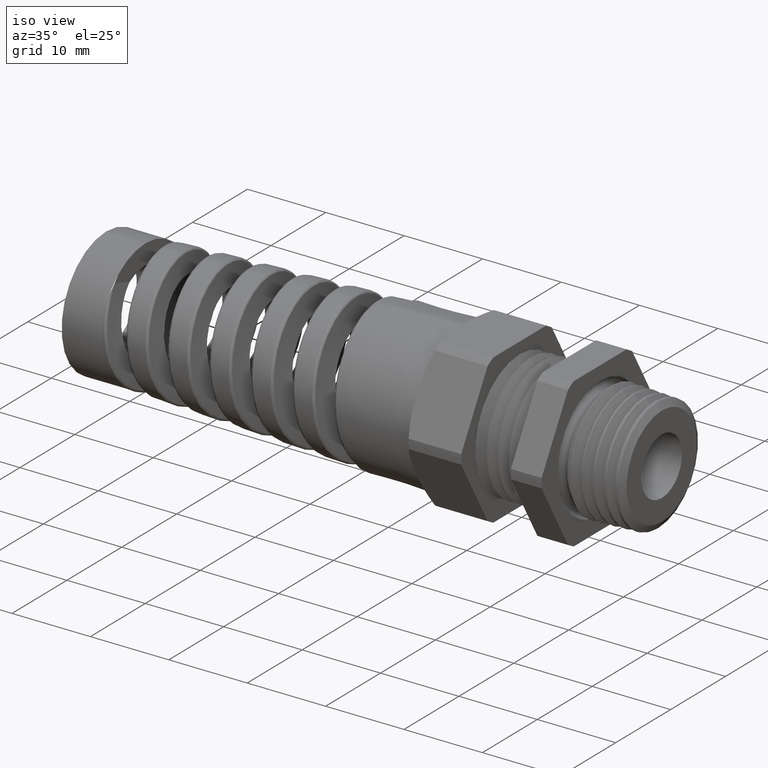
[diagram: clean part render]
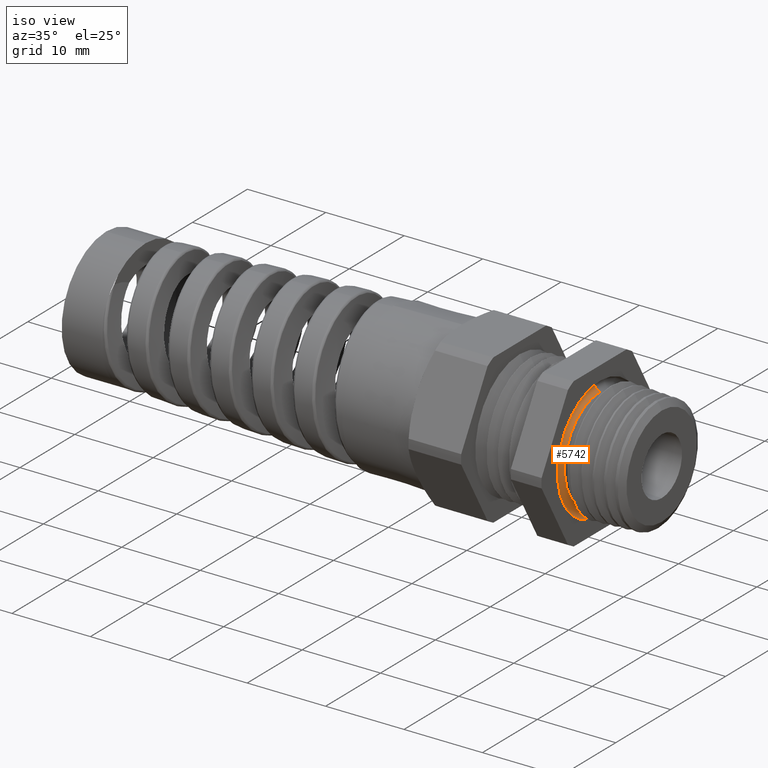
[diagram: same view with one face highlighted and labeled with its STEP entity id]
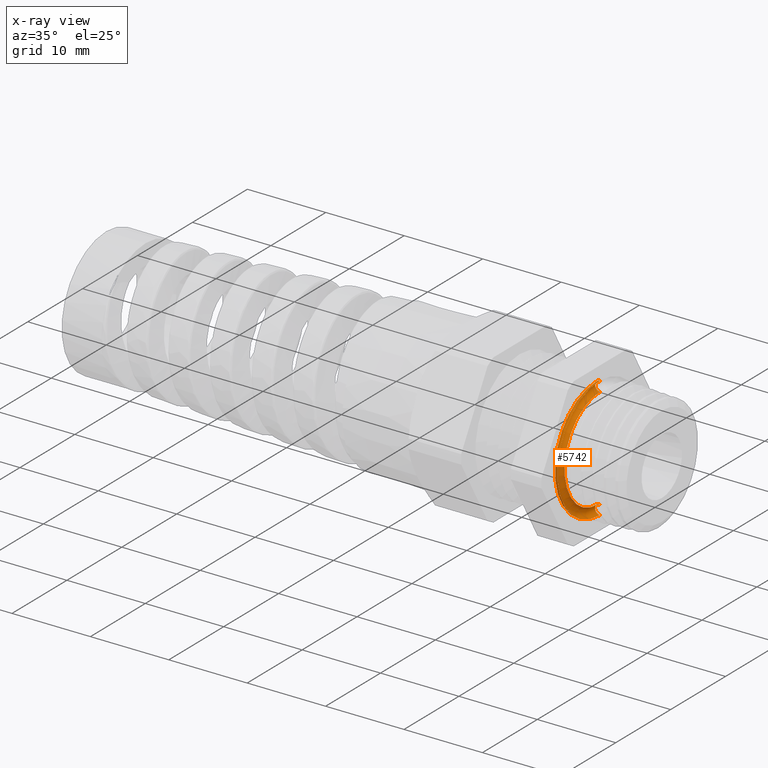
[diagram: x-ray of the same camera — body ghosted, the highlighted face saturated]
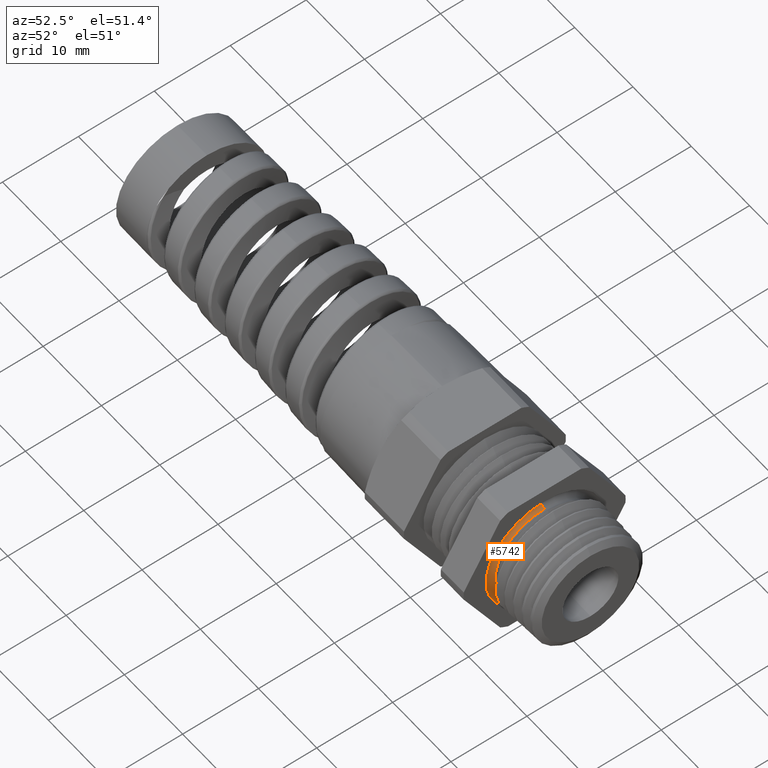
[diagram: same view with one face highlighted and labeled with its STEP entity id]
A machine part, iso view. The second image highlights one B-rep face of the part: STEP entity #5742.
The next image is the same camera in x-ray: the body ghosted, the highlighted face saturated — about 0% of this face is hidden behind the body in this view.
A second angle (auxiliary view) of the same face is appended — the face is thin or edge-on in the first view.
In plain terms, the highlighted toroidal blend (fillet) surface has major radius 7.112 mm and minor (blend) radius 0.635 mm.
Its self-contained STEP definition (entity closure, byte-faithful):
#3880 = DIRECTION ( 'NONE',  ( 0.0000000000000000000, 0.0000000000000000000, 1.000000000000000000 ) ) ;
#3881 = DIRECTION ( 'NONE',  ( 1.000000000000000000, 0.0000000000000000000, 0.0000000000000000000 ) ) ;
#3882 = CARTESIAN_POINT ( 'NONE',  ( 0.0000000000000000000, 0.0000000000000000000, 0.0000000000000000000 ) ) ;
#3883 = AXIS2_PLACEMENT_3D ( 'NONE', #3882, #3881, #3880 ) ;
#3884 = CIRCLE ( 'NONE', #3883, 0.3049999999999998300 ) ;
#3885 = DIRECTION ( 'NONE',  ( 0.0000000000000000000, 0.0000000000000000000, -1.000000000000000000 ) ) ;
#3886 = DIRECTION ( 'NONE',  ( 0.0000000000000000000, -1.000000000000000000, 0.0000000000000000000 ) ) ;
#3887 = CARTESIAN_POINT ( 'NONE',  ( 0.0000000000000000000, 0.0000000000000000000, -0.2799999999999999700 ) ) ;
#3888 = AXIS2_PLACEMENT_3D ( 'NONE', #3887, #3886, #3885 ) ;
#3889 = CIRCLE ( 'NONE', #3888, 0.02499999999999983500 ) ;
#3890 = CARTESIAN_POINT ( 'NONE',  ( 0.0000000000000000000, 3.735172737399425200E-017, 0.3049999999999998300 ) ) ;
#3891 = DIRECTION ( 'NONE',  ( 0.0000000000000000000, 1.224646799147353900E-016, 1.000000000000000000 ) ) ;
#3892 = DIRECTION ( 'NONE',  ( 0.0000000000000000000, 1.000000000000000000, -1.224646799147353200E-016 ) ) ;
#3893 = CARTESIAN_POINT ( 'NONE',  ( 0.0000000000000000000, 3.429011037612588800E-017, 0.2799999999999999700 ) ) ;
#3894 = AXIS2_PLACEMENT_3D ( 'NONE', #3893, #3892, #3891 ) ;
#3895 = CIRCLE ( 'NONE', #3894, 0.02499999999999983500 ) ;
#3900 = CARTESIAN_POINT ( 'NONE',  ( 0.0000000000000000000, 0.0000000000000000000, -0.3049999999999998300 ) ) ;
#3982 = DIRECTION ( 'NONE',  ( 0.0000000000000000000, 0.0000000000000000000, -1.000000000000000000 ) ) ;
#3983 = DIRECTION ( 'NONE',  ( 1.000000000000000000, 0.0000000000000000000, 0.0000000000000000000 ) ) ;
#3984 = AXIS2_PLACEMENT_3D ( 'NONE', #3987, #3983, #3982 ) ;
#3985 = TOROIDAL_SURFACE ( 'NONE', #3984, 0.2799999999999999700, 0.02499999999999983500 ) ;
#3987 = CARTESIAN_POINT ( 'NONE',  ( 0.0000000000000000000, 0.0000000000000000000, 0.0000000000000000000 ) ) ;
#3988 = FACE_OUTER_BOUND ( 'NONE', #5743, .T. ) ;
#4979 = CARTESIAN_POINT ( 'NONE',  ( -3.061616997868362800E-018, 3.122849337825752400E-017, 0.2550000000000001700 ) ) ;
#5083 = CARTESIAN_POINT ( 'NONE',  ( -3.061616997868362800E-018, 0.0000000000000000000, -0.2550000000000001700 ) ) ;
#5084 = DIRECTION ( 'NONE',  ( 0.0000000000000000000, 0.0000000000000000000, -1.000000000000000000 ) ) ;
#5085 = DIRECTION ( 'NONE',  ( 1.000000000000000000, 0.0000000000000000000, 0.0000000000000000000 ) ) ;
#5086 = CARTESIAN_POINT ( 'NONE',  ( -3.061616997868362800E-018, 0.0000000000000000000, 0.0000000000000000000 ) ) ;
#5087 = AXIS2_PLACEMENT_3D ( 'NONE', #5086, #5085, #5084 ) ;
#5088 = CIRCLE ( 'NONE', #5087, 0.2550000000000001700 ) ;
#5714 = EDGE_CURVE ( 'NONE', #9652, #5716, #3895, .T. ) ;
#5715 = ORIENTED_EDGE ( 'NONE', *, *, #5717, .F. ) ;
#5716 = VERTEX_POINT ( 'NONE', #3890 ) ;
#5717 = EDGE_CURVE ( 'NONE', #9677, #5721, #3889, .T. ) ;
#5718 = EDGE_CURVE ( 'NONE', #5716, #5721, #3884, .T. ) ;
#5721 = VERTEX_POINT ( 'NONE', #3900 ) ;
#5722 = ORIENTED_EDGE ( 'NONE', *, *, #5718, .T. ) ;
#5723 = ORIENTED_EDGE ( 'NONE', *, *, #5714, .T. ) ;
#5741 = ORIENTED_EDGE ( 'NONE', *, *, #9673, .F. ) ;
#5742 = ADVANCED_FACE ( 'NONE', ( #3988 ), #3985, .F. ) ;
#5743 = EDGE_LOOP ( 'NONE', ( #5741, #5723, #5722, #5715 ) ) ;
#9652 = VERTEX_POINT ( 'NONE', #4979 ) ;
#9673 = EDGE_CURVE ( 'NONE', #9652, #9677, #5088, .T. ) ;
#9677 = VERTEX_POINT ( 'NONE', #5083 ) ;